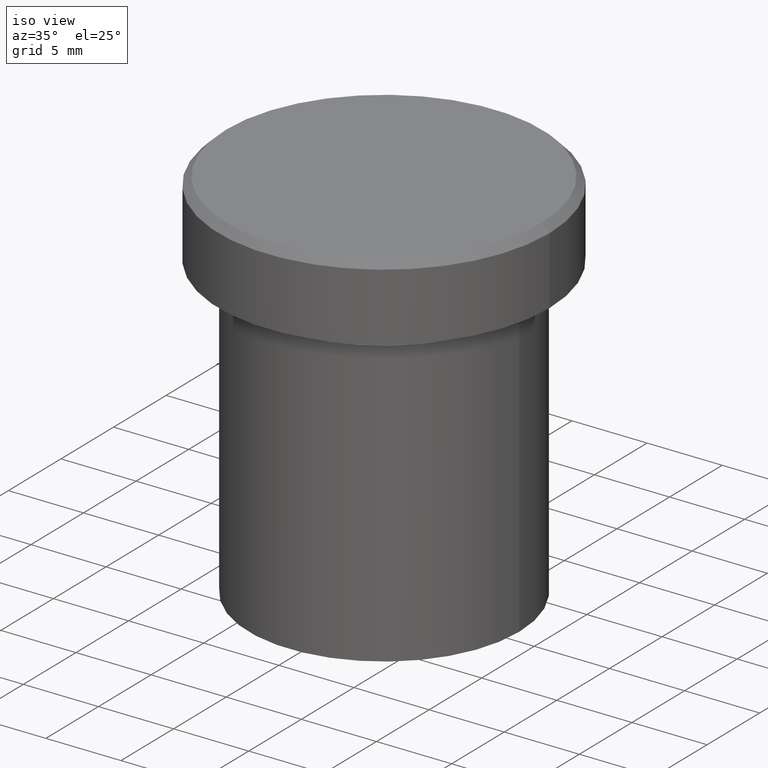
[diagram: clean part render]
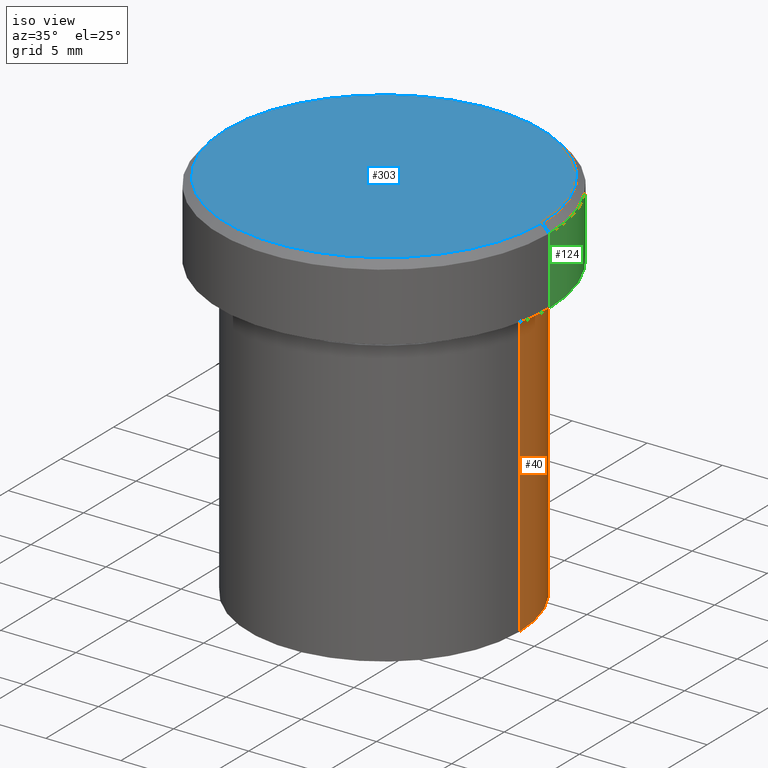
[diagram: same view with three faces highlighted in distinct colors, each labeled with its STEP entity id]
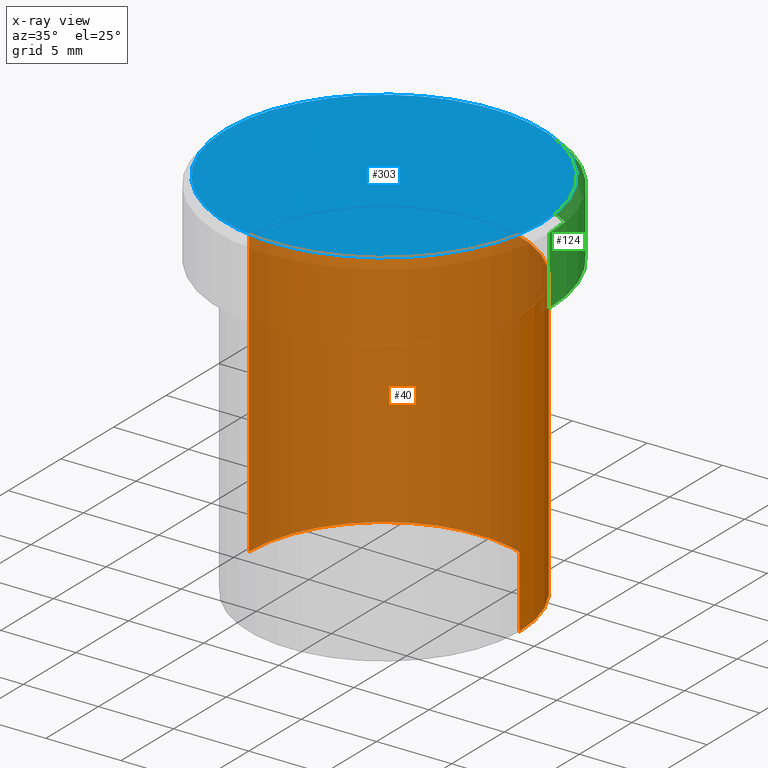
[diagram: x-ray of the same camera — body ghosted, the three highlighted faces saturated]
A machine part, iso view with three faces highlighted in distinct colors.
The next image is the same camera in x-ray (body ghosted, the three faces saturated) — at least one of them is partly hidden behind the body in this view.
Their STEP definitions:

[orange] entity #40 — the highlighted cylindrical surface (partial cylindrical patch) has radius 9 mm, axis along (-0, -0, 1).
#1 = DIRECTION ( 'NONE',  ( 1.000000000000000000, 0.000000000000000000, 0.000000000000000000 ) ) ;
#4 = CYLINDRICAL_SURFACE ( 'NONE', #222, 9.000000000000000000 ) ;
#40 = ADVANCED_FACE ( 'NONE', ( #169 ), #4, .T. ) ;
#44 = DIRECTION ( 'NONE',  ( -0.000000000000000000, -0.000000000000000000, 1.000000000000000000 ) ) ;
#53 = VERTEX_POINT ( 'NONE', #55 ) ;
#55 = CARTESIAN_POINT ( 'NONE',  ( 9.000000000000000000, 0.000000000000000000, -6.000000000000000000 ) ) ;
#72 = CARTESIAN_POINT ( 'NONE',  ( -9.000000000000000000, 1.102182119232617714E-15, -25.00000000000000000 ) ) ;
#84 = VERTEX_POINT ( 'NONE', #107 ) ;
#96 = DIRECTION ( 'NONE',  ( 1.000000000000000000, 0.000000000000000000, 0.000000000000000000 ) ) ;
#97 = VERTEX_POINT ( 'NONE', #72 ) ;
#99 = EDGE_CURVE ( 'NONE', #53, #347, #197, .T. ) ;
#102 = EDGE_CURVE ( 'NONE', #84, #53, #132, .T. ) ;
#103 = AXIS2_PLACEMENT_3D ( 'NONE', #228, #110, #291 ) ;
#107 = CARTESIAN_POINT ( 'NONE',  ( 9.000000000000000000, 0.000000000000000000, -25.00000000000000000 ) ) ;
#110 = DIRECTION ( 'NONE',  ( -0.000000000000000000, -0.000000000000000000, 1.000000000000000000 ) ) ;
#115 = ORIENTED_EDGE ( 'NONE', *, *, #348, .T. ) ;
#132 = LINE ( 'NONE', #255, #340 ) ;
#154 = ORIENTED_EDGE ( 'NONE', *, *, #99, .F. ) ;
#169 = FACE_OUTER_BOUND ( 'NONE', #312, .T. ) ;
#170 = CARTESIAN_POINT ( 'NONE',  ( -9.000000000000000000, 1.102182119232617714E-15, 0.000000000000000000 ) ) ;
#172 = CARTESIAN_POINT ( 'NONE',  ( -9.000000000000000000, 1.102182119232617714E-15, -6.000000000000000000 ) ) ;
#187 = VECTOR ( 'NONE', #44, 1000.000000000000000 ) ;
#189 = DIRECTION ( 'NONE',  ( -0.000000000000000000, -0.000000000000000000, 1.000000000000000000 ) ) ;
#197 = CIRCLE ( 'NONE', #301, 9.000000000000000000 ) ;
#202 = ORIENTED_EDGE ( 'NONE', *, *, #237, .T. ) ;
#219 = CIRCLE ( 'NONE', #103, 9.000000000000000000 ) ;
#222 = AXIS2_PLACEMENT_3D ( 'NONE', #289, #309, #96 ) ;
#223 = CARTESIAN_POINT ( 'NONE',  ( 0.000000000000000000, 0.000000000000000000, -6.000000000000000000 ) ) ;
#228 = CARTESIAN_POINT ( 'NONE',  ( 0.000000000000000000, 0.000000000000000000, -25.00000000000000000 ) ) ;
#236 = LINE ( 'NONE', #170, #187 ) ;
#237 = EDGE_CURVE ( 'NONE', #84, #97, #219, .T. ) ;
#255 = CARTESIAN_POINT ( 'NONE',  ( 9.000000000000000000, 0.000000000000000000, 0.000000000000000000 ) ) ;
#275 = ORIENTED_EDGE ( 'NONE', *, *, #102, .F. ) ;
#285 = DIRECTION ( 'NONE',  ( -0.000000000000000000, -0.000000000000000000, 1.000000000000000000 ) ) ;
#289 = CARTESIAN_POINT ( 'NONE',  ( 0.000000000000000000, 0.000000000000000000, 0.000000000000000000 ) ) ;
#291 = DIRECTION ( 'NONE',  ( 1.000000000000000000, 0.000000000000000000, 0.000000000000000000 ) ) ;
#301 = AXIS2_PLACEMENT_3D ( 'NONE', #223, #285, #1 ) ;
#309 = DIRECTION ( 'NONE',  ( -0.000000000000000000, -0.000000000000000000, 1.000000000000000000 ) ) ;
#312 = EDGE_LOOP ( 'NONE', ( #202, #115, #154, #275 ) ) ;
#340 = VECTOR ( 'NONE', #189, 1000.000000000000000 ) ;
#347 = VERTEX_POINT ( 'NONE', #172 ) ;
#348 = EDGE_CURVE ( 'NONE', #97, #347, #236, .T. ) ;

[blue] entity #303 — the highlighted planar face has unit normal (0, -0, 1).
#19 = EDGE_CURVE ( 'NONE', #398, #39, #117, .T. ) ;
#39 = VERTEX_POINT ( 'NONE', #393 ) ;
#42 = DIRECTION ( 'NONE',  ( 1.000000000000000000, 0.000000000000000000, 0.000000000000000000 ) ) ;
#79 = DIRECTION ( 'NONE',  ( 1.000000000000000000, 0.000000000000000000, 0.000000000000000000 ) ) ;
#117 = CIRCLE ( 'NONE', #377, 10.50000000000001243 ) ;
#136 = CARTESIAN_POINT ( 'NONE',  ( 0.000000000000000000, 0.000000000000000000, 0.000000000000000000 ) ) ;
#176 = CARTESIAN_POINT ( 'NONE',  ( 0.000000000000000000, 0.000000000000000000, 0.000000000000000000 ) ) ;
#225 = CIRCLE ( 'NONE', #395, 10.50000000000001243 ) ;
#227 = EDGE_LOOP ( 'NONE', ( #259, #343 ) ) ;
#229 = FACE_OUTER_BOUND ( 'NONE', #227, .T. ) ;
#259 = ORIENTED_EDGE ( 'NONE', *, *, #349, .T. ) ;
#260 = DIRECTION ( 'NONE',  ( -0.000000000000000000, -0.000000000000000000, 1.000000000000000000 ) ) ;
#265 = DIRECTION ( 'NONE',  ( 1.000000000000000000, 0.000000000000000000, 0.000000000000000000 ) ) ;
#267 = DIRECTION ( 'NONE',  ( -0.000000000000000000, -0.000000000000000000, 1.000000000000000000 ) ) ;
#294 = CARTESIAN_POINT ( 'NONE',  ( 0.000000000000000000, 0.000000000000000000, 0.000000000000000000 ) ) ;
#303 = ADVANCED_FACE ( 'NONE', ( #229 ), #353, .T. ) ;
#329 = AXIS2_PLACEMENT_3D ( 'NONE', #176, #387, #42 ) ;
#343 = ORIENTED_EDGE ( 'NONE', *, *, #19, .T. ) ;
#349 = EDGE_CURVE ( 'NONE', #39, #398, #225, .T. ) ;
#353 = PLANE ( 'NONE',  #329 ) ;
#371 = CARTESIAN_POINT ( 'NONE',  ( 10.50000000000001243, 1.316495309083405604E-15, 0.000000000000000000 ) ) ;
#377 = AXIS2_PLACEMENT_3D ( 'NONE', #294, #267, #265 ) ;
#387 = DIRECTION ( 'NONE',  ( 0.000000000000000000, -0.000000000000000000, 1.000000000000000000 ) ) ;
#393 = CARTESIAN_POINT ( 'NONE',  ( -10.50000000000001243, 0.000000000000000000, 0.000000000000000000 ) ) ;
#395 = AXIS2_PLACEMENT_3D ( 'NONE', #136, #260, #79 ) ;
#398 = VERTEX_POINT ( 'NONE', #371 ) ;

[green] entity #124 — the highlighted cylindrical surface (partial cylindrical patch) has radius 11 mm, axis along (-0, -0, 1).
#5 = DIRECTION ( 'NONE',  ( 0.000000000000000000, 0.000000000000000000, -1.000000000000000000 ) ) ;
#11 = LINE ( 'NONE', #144, #239 ) ;
#15 = DIRECTION ( 'NONE',  ( -0.000000000000000000, -0.000000000000000000, 1.000000000000000000 ) ) ;
#21 = VERTEX_POINT ( 'NONE', #390 ) ;
#25 = FACE_OUTER_BOUND ( 'NONE', #359, .T. ) ;
#32 = VERTEX_POINT ( 'NONE', #200 ) ;
#37 = CARTESIAN_POINT ( 'NONE',  ( 0.000000000000000000, 0.000000000000000000, -0.4999999999999882871 ) ) ;
#41 = ORIENTED_EDGE ( 'NONE', *, *, #93, .F. ) ;
#49 = CARTESIAN_POINT ( 'NONE',  ( 0.000000000000000000, 0.000000000000000000, -5.000000000000000000 ) ) ;
#74 = ORIENTED_EDGE ( 'NONE', *, *, #318, .T. ) ;
#76 = LINE ( 'NONE', #171, #307 ) ;
#93 = EDGE_CURVE ( 'NONE', #32, #21, #76, .T. ) ;
#124 = ADVANCED_FACE ( 'NONE', ( #25 ), #143, .T. ) ;
#130 = CIRCLE ( 'NONE', #296, 11.00000000000000178 ) ;
#137 = DIRECTION ( 'NONE',  ( 1.000000000000000000, 0.000000000000000000, 0.000000000000000000 ) ) ;
#143 = CYLINDRICAL_SURFACE ( 'NONE', #281, 11.00000000000000178 ) ;
#144 = CARTESIAN_POINT ( 'NONE',  ( -11.00000000000000178, 1.347111479062088602E-15, 0.000000000000000000 ) ) ;
#148 = ORIENTED_EDGE ( 'NONE', *, *, #380, .T. ) ;
#159 = CARTESIAN_POINT ( 'NONE',  ( -11.00000000000000178, 1.347111479062088602E-15, -0.4999999999999882871 ) ) ;
#171 = CARTESIAN_POINT ( 'NONE',  ( 11.00000000000000178, 0.000000000000000000, 0.000000000000000000 ) ) ;
#178 = CARTESIAN_POINT ( 'NONE',  ( 0.000000000000000000, 0.000000000000000000, 0.000000000000000000 ) ) ;
#180 = CIRCLE ( 'NONE', #378, 11.00000000000000000 ) ;
#184 = VERTEX_POINT ( 'NONE', #159 ) ;
#188 = ORIENTED_EDGE ( 'NONE', *, *, #374, .T. ) ;
#200 = CARTESIAN_POINT ( 'NONE',  ( 11.00000000000000000, 0.000000000000000000, -5.000000000000000000 ) ) ;
#206 = CARTESIAN_POINT ( 'NONE',  ( -11.00000000000000000, 1.347111479062088602E-15, -5.000000000000000000 ) ) ;
#239 = VECTOR ( 'NONE', #266, 1000.000000000000000 ) ;
#253 = DIRECTION ( 'NONE',  ( -0.000000000000000000, -0.000000000000000000, 1.000000000000000000 ) ) ;
#266 = DIRECTION ( 'NONE',  ( -0.000000000000000000, -0.000000000000000000, 1.000000000000000000 ) ) ;
#274 = VERTEX_POINT ( 'NONE', #206 ) ;
#281 = AXIS2_PLACEMENT_3D ( 'NONE', #178, #15, #299 ) ;
#296 = AXIS2_PLACEMENT_3D ( 'NONE', #37, #5, #326 ) ;
#298 = DIRECTION ( 'NONE',  ( -0.000000000000000000, -0.000000000000000000, 1.000000000000000000 ) ) ;
#299 = DIRECTION ( 'NONE',  ( 1.000000000000000000, 0.000000000000000000, 0.000000000000000000 ) ) ;
#307 = VECTOR ( 'NONE', #253, 1000.000000000000000 ) ;
#318 = EDGE_CURVE ( 'NONE', #184, #21, #130, .T. ) ;
#326 = DIRECTION ( 'NONE',  ( 1.000000000000000000, 0.000000000000000000, 0.000000000000000000 ) ) ;
#359 = EDGE_LOOP ( 'NONE', ( #188, #148, #74, #41 ) ) ;
#374 = EDGE_CURVE ( 'NONE', #32, #274, #180, .T. ) ;
#378 = AXIS2_PLACEMENT_3D ( 'NONE', #49, #298, #137 ) ;
#380 = EDGE_CURVE ( 'NONE', #274, #184, #11, .T. ) ;
#390 = CARTESIAN_POINT ( 'NONE',  ( 11.00000000000000178, 0.000000000000000000, -0.4999999999999882871 ) ) ;